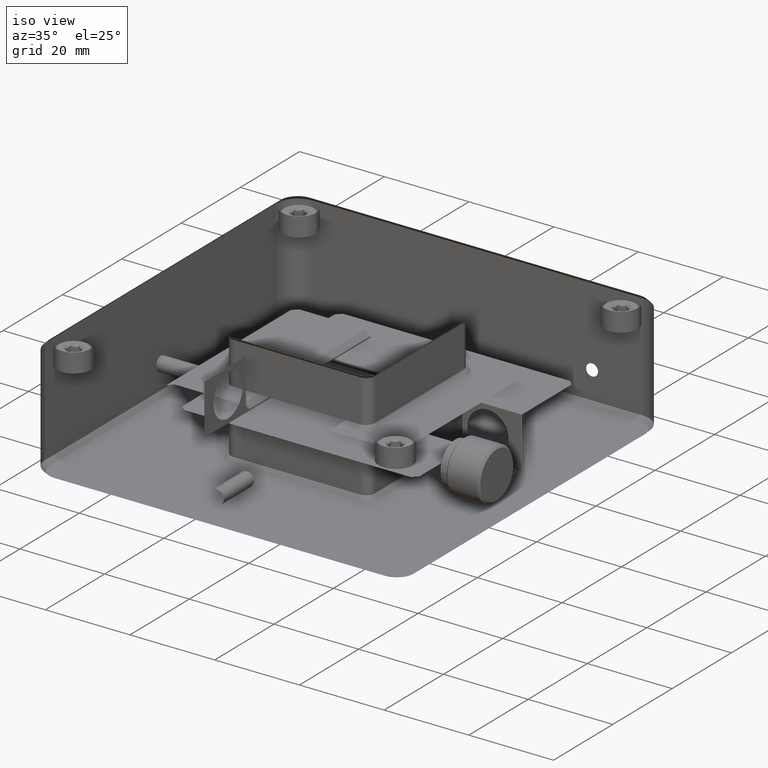
[diagram: clean part render]
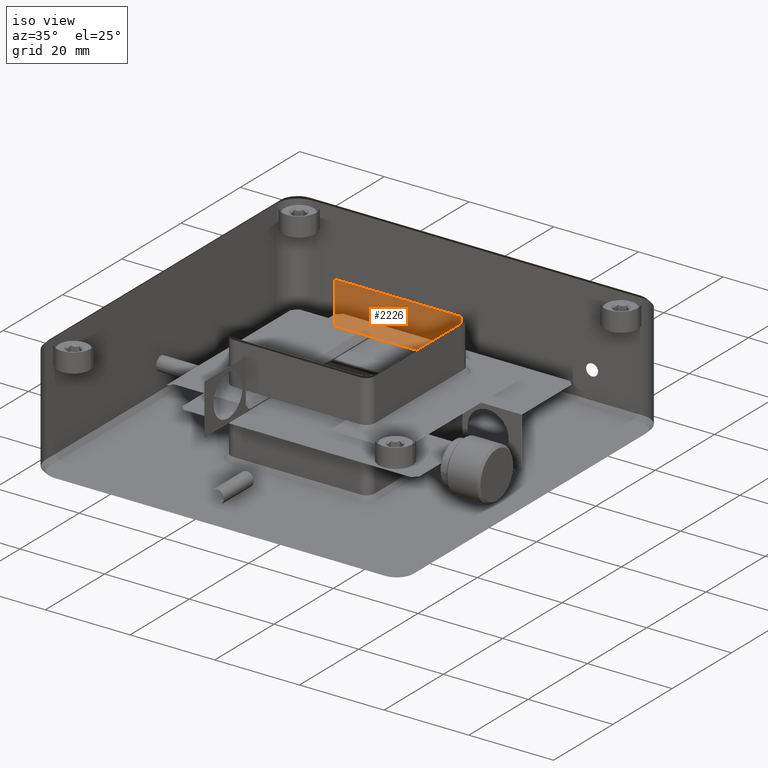
[diagram: same view with one face highlighted and labeled with its STEP entity id]
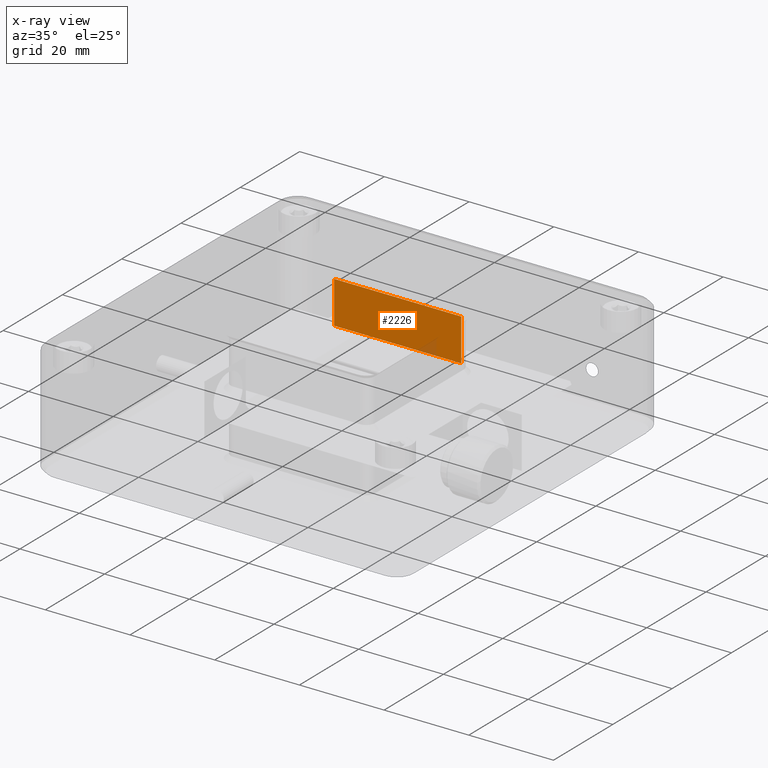
[diagram: x-ray of the same camera — body ghosted, the highlighted face saturated]
A machine part, iso view. The second image highlights one B-rep face of the part: STEP entity #2226.
The next image is the same camera in x-ray: the body ghosted, the highlighted face saturated — about 3% of this face is hidden behind the body in this view.
In plain terms, the highlighted planar face has unit normal (0, -1, 0).
Its self-contained STEP definition (entity closure, byte-faithful):
#16 = PLANE ( 'NONE',  #4782 ) ;
#138 = CARTESIAN_POINT ( 'NONE',  ( 105.5087469373111730, 46.67999999999999972, 11.17399999999999949 ) ) ;
#228 = CARTESIAN_POINT ( 'NONE',  ( 73.50874693731117304, 46.67999999999516803, 11.17400000000988491 ) ) ;
#529 = EDGE_CURVE ( 'NONE', #2253, #5181, #848, .T. ) ;
#628 = VECTOR ( 'NONE', #2847, 1000.000000000000000 ) ;
#720 = ORIENTED_EDGE ( 'NONE', *, *, #4560, .F. ) ;
#848 = LINE ( 'NONE', #5292, #4877 ) ;
#888 = ORIENTED_EDGE ( 'NONE', *, *, #2010, .F. ) ;
#2010 = EDGE_CURVE ( 'NONE', #4942, #5181, #6788, .T. ) ;
#2117 = DIRECTION ( 'NONE',  ( 1.000000000000000000, 2.193914984323608943E-16, 0.000000000000000000 ) ) ;
#2226 = ADVANCED_FACE ( 'NONE', ( #4903 ), #16, .F. ) ;
#2227 = EDGE_LOOP ( 'NONE', ( #888, #5263, #720, #4587 ) ) ;
#2253 = VERTEX_POINT ( 'NONE', #4706 ) ;
#2478 = LINE ( 'NONE', #3084, #6158 ) ;
#2847 = DIRECTION ( 'NONE',  ( 1.000000000000000000, 2.193914984323608943E-16, 0.000000000000000000 ) ) ;
#3084 = CARTESIAN_POINT ( 'NONE',  ( 73.50874693731117304, 46.67999999999998550, 8.673999999999999488 ) ) ;
#3384 = CARTESIAN_POINT ( 'NONE',  ( 103.5087469373111873, 46.67999999999451433, 21.17399999999339855 ) ) ;
#3411 = LINE ( 'NONE', #138, #628 ) ;
#3555 = DIRECTION ( 'NONE',  ( 1.000000000000000000, 1.096957492161802623E-16, -1.096957492161804472E-16 ) ) ;
#3683 = CARTESIAN_POINT ( 'NONE',  ( 103.5087469373111873, 46.67999999999518224, 11.17400000000988491 ) ) ;
#4200 = VECTOR ( 'NONE', #5124, 1000.000000000000000 ) ;
#4560 = EDGE_CURVE ( 'NONE', #2253, #5889, #2478, .T. ) ;
#4587 = ORIENTED_EDGE ( 'NONE', *, *, #529, .T. ) ;
#4706 = CARTESIAN_POINT ( 'NONE',  ( 73.50874693731117304, 46.67999999995389260, 21.17399999997259030 ) ) ;
#4782 = AXIS2_PLACEMENT_3D ( 'NONE', #6065, #5432, #2117 ) ;
#4877 = VECTOR ( 'NONE', #3555, 1000.000000000000000 ) ;
#4903 = FACE_OUTER_BOUND ( 'NONE', #2227, .T. ) ;
#4942 = VERTEX_POINT ( 'NONE', #3683 ) ;
#5124 = DIRECTION ( 'NONE',  ( -0.000000000000000000, 0.000000000000000000, 1.000000000000000000 ) ) ;
#5181 = VERTEX_POINT ( 'NONE', #3384 ) ;
#5263 = ORIENTED_EDGE ( 'NONE', *, *, #5512, .F. ) ;
#5292 = CARTESIAN_POINT ( 'NONE',  ( 88.50874693731118725, 46.67999999999998550, 21.17399999999999594 ) ) ;
#5432 = DIRECTION ( 'NONE',  ( 2.193914984323608943E-16, -1.000000000000000000, 0.000000000000000000 ) ) ;
#5512 = EDGE_CURVE ( 'NONE', #5889, #4942, #3411, .T. ) ;
#5889 = VERTEX_POINT ( 'NONE', #228 ) ;
#6065 = CARTESIAN_POINT ( 'NONE',  ( 105.5087469373111730, 46.67999999999999972, 8.673999999999999488 ) ) ;
#6158 = VECTOR ( 'NONE', #6963, 1000.000000000000000 ) ;
#6754 = CARTESIAN_POINT ( 'NONE',  ( 103.5087469373111873, 46.67999999999999972, 8.673999999999999488 ) ) ;
#6788 = LINE ( 'NONE', #6754, #4200 ) ;
#6963 = DIRECTION ( 'NONE',  ( 0.000000000000000000, 0.000000000000000000, -1.000000000000000000 ) ) ;